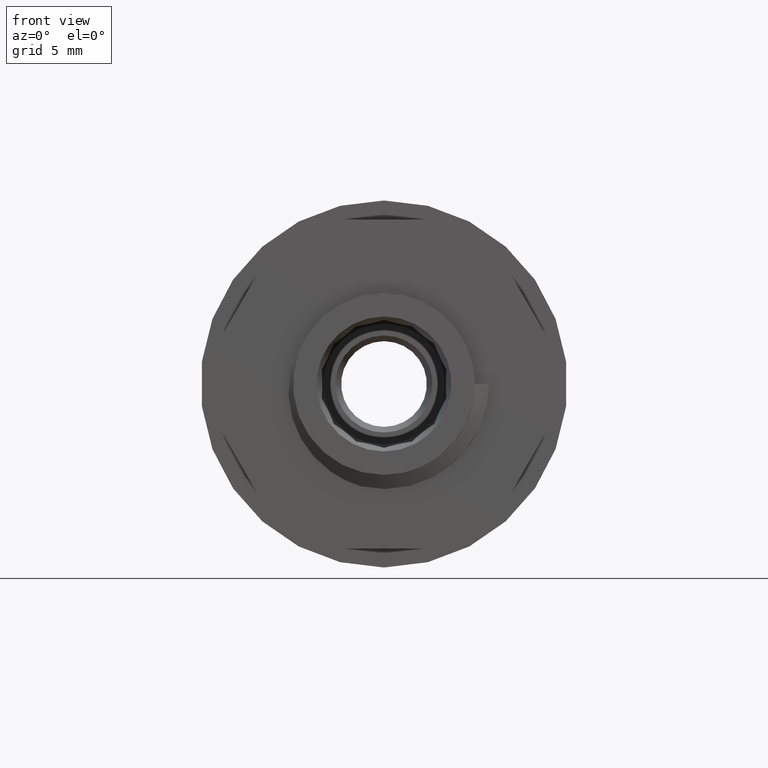
[diagram: clean part render]
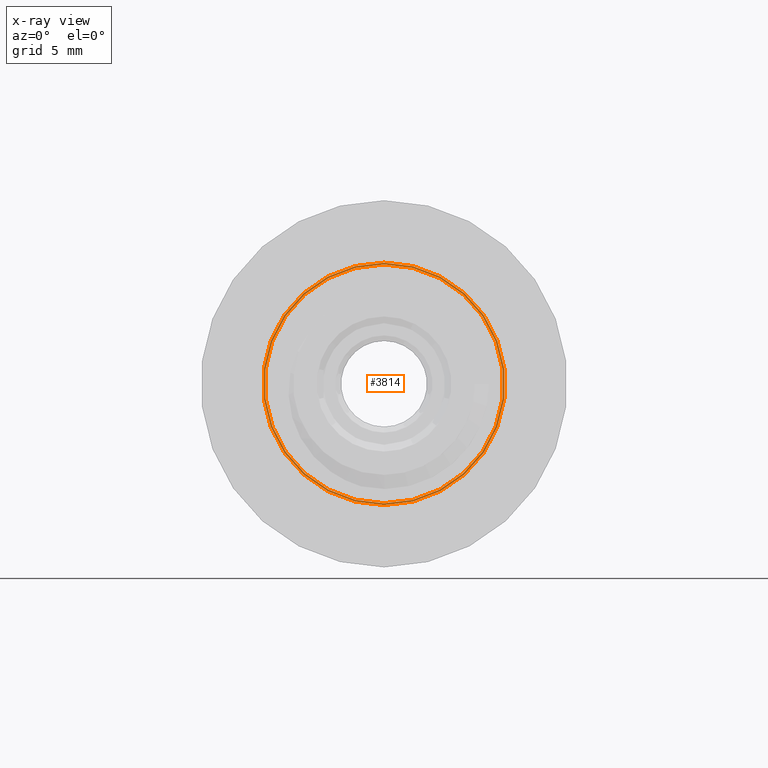
[diagram: x-ray — body ghosted, one internal face saturated and labeled with its STEP entity id]
A machine part, front view, then the same camera in x-ray: the body is ghosted and one INTERNAL B-rep face — a face not visible from any outside direction — is saturated and labeled: STEP entity #3814.
In plain terms, the highlighted planar face has unit normal (0, 1, 0).
Its self-contained STEP definition (entity closure, byte-faithful):
#147 = AXIS2_PLACEMENT_3D ( 'NONE', #10654, #10641, #10671 ) ;
#237 = CIRCLE ( 'NONE', #280, 7.000000000000000900 ) ;
#280 = AXIS2_PLACEMENT_3D ( 'NONE', #5751, #5766, #5798 ) ;
#293 = AXIS2_PLACEMENT_3D ( 'NONE', #6062, #6041, #6072 ) ;
#296 = CIRCLE ( 'NONE', #293, 6.900000000000000400 ) ;
#620 = CIRCLE ( 'NONE', #639, 6.900000000000000400 ) ;
#637 = CIRCLE ( 'NONE', #648, 7.000000000000000900 ) ;
#639 = AXIS2_PLACEMENT_3D ( 'NONE', #1621, #1619, #1631 ) ;
#648 = AXIS2_PLACEMENT_3D ( 'NONE', #1595, #1588, #1599 ) ;
#837 = EDGE_LOOP ( 'NONE', ( #1306, #1299 ) ) ;
#1212 = ORIENTED_EDGE ( 'NONE', *, *, #3557, .T. ) ;
#1299 = ORIENTED_EDGE ( 'NONE', *, *, #3562, .F. ) ;
#1306 = ORIENTED_EDGE ( 'NONE', *, *, #3217, .F. ) ;
#1321 = ORIENTED_EDGE ( 'NONE', *, *, #3169, .T. ) ;
#1574 = EDGE_LOOP ( 'NONE', ( #1212, #1321 ) ) ;
#1588 = DIRECTION ( 'NONE',  ( -0.0000000000000000000, 1.000000000000000000, -2.040851148208008000E-016 ) ) ;
#1595 = CARTESIAN_POINT ( 'NONE',  ( -7.317089282679049000E-033, 12.13340626348045200, -3.061276722312921200E-016 ) ) ;
#1599 = DIRECTION ( 'NONE',  ( 0.0000000000000000000, -2.478176394252581100E-016, -1.000000000000000000 ) ) ;
#1619 = DIRECTION ( 'NONE',  ( 0.0000000000000000000, 1.000000000000000000, 0.0000000000000000000 ) ) ;
#1621 = CARTESIAN_POINT ( 'NONE',  ( 0.0000000000000000000, 12.13340626348028200, 0.0000000000000000000 ) ) ;
#1631 = DIRECTION ( 'NONE',  ( 0.0000000000000000000, 0.0000000000000000000, 1.000000000000000000 ) ) ;
#2853 = CARTESIAN_POINT ( 'NONE',  ( 9.491012693391989800E-016, 12.13340626348045400, 7.000000000000000900 ) ) ;
#2895 = CARTESIAN_POINT ( 'NONE',  ( -7.317089282679049000E-033, 12.13340626348045100, -7.000000000000000900 ) ) ;
#2904 = CARTESIAN_POINT ( 'NONE',  ( 8.450062914116737600E-016, 12.13340626348028200, -6.900000000000000400 ) ) ;
#2910 = CARTESIAN_POINT ( 'NONE',  ( 0.0000000000000000000, 12.13340626348028200, 6.900000000000000400 ) ) ;
#3169 = EDGE_CURVE ( 'NONE', #10066, #10123, #237, .T. ) ;
#3217 = EDGE_CURVE ( 'NONE', #10104, #10112, #296, .T. ) ;
#3557 = EDGE_CURVE ( 'NONE', #10123, #10066, #637, .T. ) ;
#3562 = EDGE_CURVE ( 'NONE', #10112, #10104, #620, .T. ) ;
#3814 = ADVANCED_FACE ( 'NONE', ( #10684, #10642 ), #10652, .T. ) ;
#5751 = CARTESIAN_POINT ( 'NONE',  ( -7.317089282679049000E-033, 12.13340626348045200, -3.061276722312921200E-016 ) ) ;
#5766 = DIRECTION ( 'NONE',  ( -0.0000000000000000000, 1.000000000000000000, -2.040851148208008000E-016 ) ) ;
#5798 = DIRECTION ( 'NONE',  ( 0.0000000000000000000, -2.478176394252581100E-016, -1.000000000000000000 ) ) ;
#6041 = DIRECTION ( 'NONE',  ( 0.0000000000000000000, 1.000000000000000000, 0.0000000000000000000 ) ) ;
#6062 = CARTESIAN_POINT ( 'NONE',  ( 0.0000000000000000000, 12.13340626348028200, 0.0000000000000000000 ) ) ;
#6072 = DIRECTION ( 'NONE',  ( 0.0000000000000000000, 0.0000000000000000000, 1.000000000000000000 ) ) ;
#10066 = VERTEX_POINT ( 'NONE', #2853 ) ;
#10104 = VERTEX_POINT ( 'NONE', #2910 ) ;
#10112 = VERTEX_POINT ( 'NONE', #2904 ) ;
#10123 = VERTEX_POINT ( 'NONE', #2895 ) ;
#10641 = DIRECTION ( 'NONE',  ( 0.0000000000000000000, 1.000000000000000000, 0.0000000000000000000 ) ) ;
#10642 = FACE_BOUND ( 'NONE', #837, .T. ) ;
#10652 = PLANE ( 'NONE',  #147 ) ;
#10654 = CARTESIAN_POINT ( 'NONE',  ( 0.0000000000000000000, 12.13340626348028200, 0.0000000000000000000 ) ) ;
#10671 = DIRECTION ( 'NONE',  ( 0.0000000000000000000, -0.0000000000000000000, 1.000000000000000000 ) ) ;
#10684 = FACE_OUTER_BOUND ( 'NONE', #1574, .T. ) ;